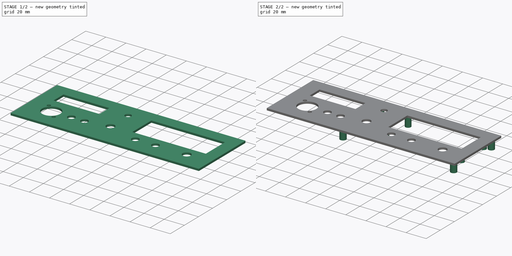
[diagram: build sequence overview — one tinted view per stage of 2, left to right]
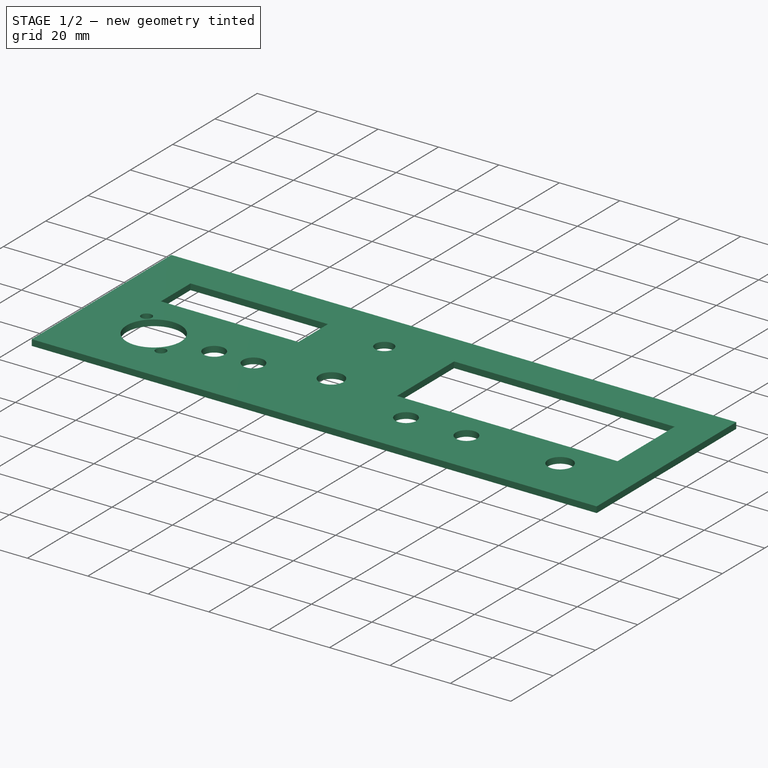
[diagram: stage 1 of 2 — iso view after this stage's code; geometry added in this stage tinted green]
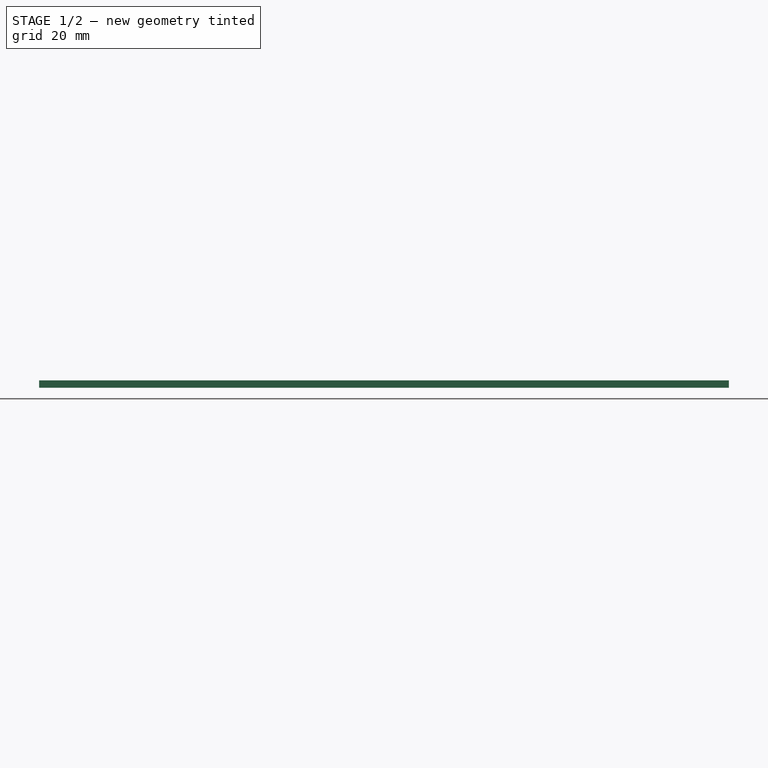
[diagram: stage 1 of 2 — front view after this stage's code; geometry added in this stage tinted green]
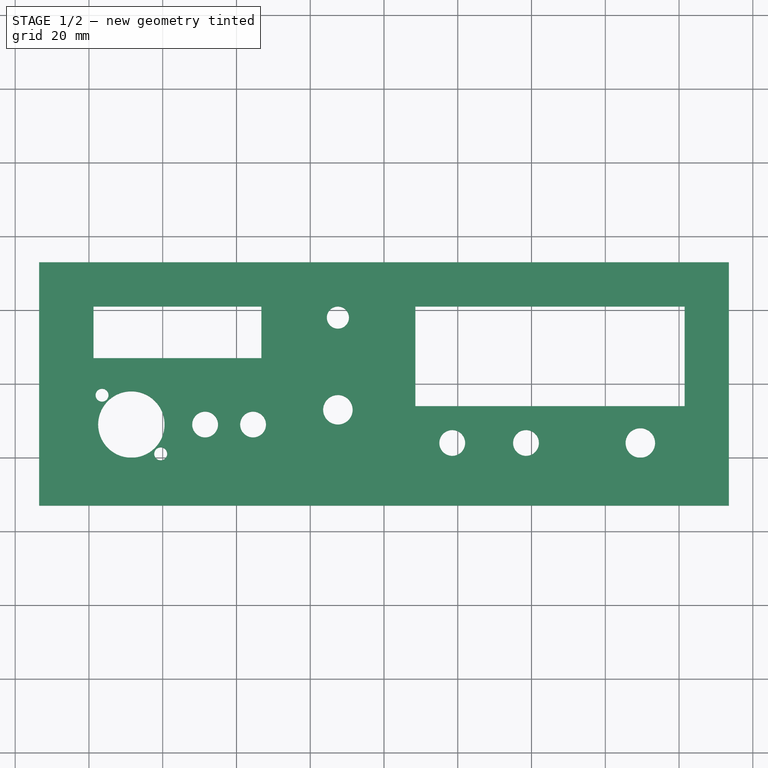
[diagram: stage 1 of 2 — top view after this stage's code; geometry added in this stage tinted green]
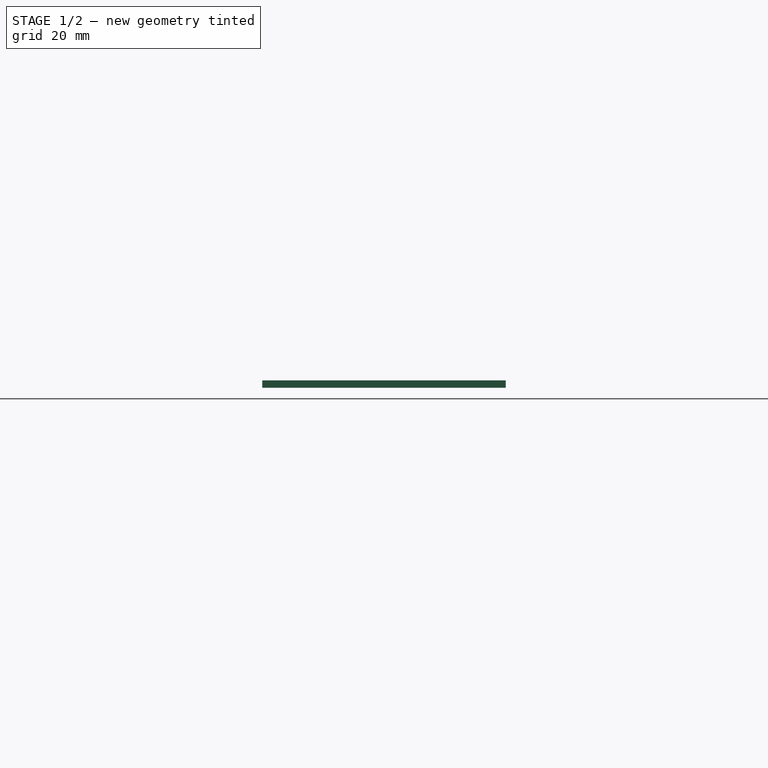
[diagram: stage 1 of 2 — right view after this stage's code; geometry added in this stage tinted green]
FCSTD DOCUMENT  (FreeCAD 0.21R33771 (Git))
Label: facade144V1
License: All rights reserved
LicenseURL: https://en.wikipedia.org/wiki/All_rights_reserved
objects: Sketcher::SketchObject×2, PartDesign::Pad×2, PartDesign::Body×1
note: 7 computed .brp shape members not serialized (recipe doc carries the construction recipe); baked Part::Feature solids carry a one-line shape summary decoded from their .brp

FEATURE [Sketcher::SketchObject] Sketch
  FullyConstrained = false
  MapMode = 5
  Support = -> [XY_Plane]
  sketch-geometry (29):
    g0: LineSegment StartX=8.5 StartY=21 StartZ=0 EndX=81.5 EndY=21 EndZ=0
    g1: LineSegment StartX=81.5 StartY=21 StartZ=0 EndX=81.5 EndY=-6 EndZ=0
    g2: LineSegment StartX=81.5 StartY=-6 StartZ=0 EndX=8.5 EndY=-6 EndZ=0
    g3: LineSegment StartX=8.5 StartY=-6 StartZ=0 EndX=8.5 EndY=21 EndZ=0
    g4: LineSegment StartX=-93.5 StartY=33 StartZ=0 EndX=93.5 EndY=33 EndZ=0
    g5: LineSegment StartX=93.5 StartY=33 StartZ=0 EndX=93.5 EndY=-33 EndZ=0
    g6: LineSegment StartX=93.5 StartY=-33 StartZ=0 EndX=-93.5 EndY=-33 EndZ=0
    g7: LineSegment StartX=-93.5 StartY=-33 StartZ=0 EndX=-93.5 EndY=33 EndZ=0
    g8: LineSegment StartX=-83.5 StartY=23 StartZ=0 EndX=83.5 EndY=23 EndZ=0
    g9: LineSegment StartX=83.5 StartY=23 StartZ=0 EndX=83.5 EndY=-23 EndZ=0
    g10: LineSegment StartX=83.5 StartY=-23 StartZ=0 EndX=-83.5 EndY=-23 EndZ=0
    g11: LineSegment StartX=-83.5 StartY=-23 StartZ=0 EndX=-83.5 EndY=23 EndZ=0
    g12: LineSegment StartX=-78.75 StartY=21 StartZ=0 EndX=-33.25 EndY=21 EndZ=0
    g13: LineSegment StartX=-33.25 StartY=21 StartZ=0 EndX=-33.25 EndY=7 EndZ=0
    g14: LineSegment StartX=-33.25 StartY=7 StartZ=0 EndX=-78.75 EndY=7 EndZ=0
    g15: LineSegment StartX=-78.75 StartY=7 StartZ=0 EndX=-78.75 EndY=21 EndZ=0
    g16: Circle CenterX=69.5 CenterY=-16 CenterZ=0 NormalX=0 NormalY=0 NormalZ=1 AngleXU=0 Radius=4
    g17: Circle CenterX=-12.5 CenterY=-7 CenterZ=0 NormalX=0 NormalY=0 NormalZ=1 AngleXU=0 Radius=4
    g18: Circle CenterX=-12.5 CenterY=-7 CenterZ=0 NormalX=0 NormalY=0 NormalZ=1 AngleXU=0 Radius=15
    g19: Circle CenterX=-12.5 CenterY=18 CenterZ=0 NormalX=0 NormalY=0 NormalZ=1 AngleXU=0 Radius=3
    g20: Circle CenterX=-48.5 CenterY=-11 CenterZ=0 NormalX=0 NormalY=0 NormalZ=1 AngleXU=0 Radius=3.5
    g21: Circle CenterX=-35.5 CenterY=-11 CenterZ=0 NormalX=0 NormalY=0 NormalZ=1 AngleXU=0 Radius=3.5
    g22: Circle CenterX=-68.5 CenterY=-11 CenterZ=0 NormalX=0 NormalY=0 NormalZ=1 AngleXU=0 Radius=9
    g23: Circle CenterX=-76.455 CenterY=-3.04505 CenterZ=0 NormalX=0 NormalY=0 NormalZ=1 AngleXU=0 Radius=1.75
    g24: Circle CenterX=-60.545 CenterY=-18.955 CenterZ=0 NormalX=0 NormalY=0 NormalZ=1 AngleXU=0 Radius=1.75
    g25: Circle CenterX=69.5 CenterY=-16 CenterZ=0 NormalX=0 NormalY=0 NormalZ=1 AngleXU=0 Radius=7.7019
    g26: Circle CenterX=18.5 CenterY=-16 CenterZ=0 NormalX=0 NormalY=0 NormalZ=1 AngleXU=0 Radius=3.5
    g27: Circle CenterX=38.5 CenterY=-16 CenterZ=0 NormalX=0 NormalY=0 NormalZ=1 AngleXU=0 Radius=3.5
    g28: LineSegment StartX=-76.455 StartY=-3.04505 StartZ=0 EndX=-60.545 EndY=-18.955 EndZ=0
  constraints (80):
    c: Coincident(g0,g1)
    c: Coincident(g1,g2)
    c: Coincident(g2,g3)
    c: Coincident(g3,g0)
    c: Horizontal(g2)
    c: Vertical(g1)
    c: Vertical(g3)
    c: Coincident(g4,g5)
    c: Coincident(g5,g6)
    c: Coincident(g6,g7)
    c: Coincident(g7,g4)
    c: Horizontal(g4)
    c: Horizontal(g6)
    c: Vertical(g5)
    c: Vertical(g7)
    c: Coincident(g8,g9)
    c: Coincident(g9,g10)
    c: Coincident(g10,g11)
    c: Coincident(g11,g8)
    c: Horizontal(g10)
    c: Vertical(g9)
    c: Symmetric(g8,g8,g-2)
    c: Symmetric(g8,g10,g-1)
    c: DistanceY(g11,g11) = 46
    c: DistanceX(g8,g8) = 167
    c: DistanceX(g0,g0) = 73
    c: DistanceY(g3,g3) = 27
    c: Coincident(g12,g13)
    c: Coincident(g13,g14)
    c: Coincident(g14,g15)
    c: Coincident(g15,g12)
    c: Horizontal(g12)
    c: Horizontal(g14)
    c: Vertical(g13)
    c: Vertical(g15)
    c: DistanceX(g12,g12) = 45.5
    c: DistanceY(g15,g15) = 14
    c: Horizontal(g0)
    c: Diameter(g17) = 8
    c: Coincident(g18,g17)
    c: Diameter(g18) = 30
    c: Diameter(g19) = 6
    c: Diameter(g16) = 8
    c: Distance(g10,g7) = 10
    c: Distance(g10,g6) = 10
    c: Distance(g8,g4) = 10
    c: Distance(g8,g5) = 10
    c: DistanceY(g-1,g17) = -7
    c: Distance(g12,g11) = 4.75
    c: Diameter(g20) = 7
    c: Equal(g20,g21)
    c: Horizontal(g20,g21)
    c: Coincident(g25,g16)
    c: Distance(g20,g21) = 13
    c: Horizontal(g26,g27)
    c: Distance(g26,g27) = 20
    c: DistanceX(g2,g26) = 10
    c: Diameter(g26) = 7
    c: Diameter(g27) = 7
    c: Diameter(g23) = 3.5
    c: Diameter(g24) = 3.5
    c: Symmetric(g23,g24,g22)
    c: Diameter(g22) = 18
    c: Horizontal(g22,g20)
    c: Distance(g22,g11) = 15
    c: Distance(g22,g10) = 12
    c: Distance(g23,g24) = 22.5
    c: Coincident(g28,g23)
    c: Coincident(g28,g24)
    c: Angle(g10,g28) = 2.35619
    c: Distance(g22,g20) = 20
    c: Horizontal(g27,g16)
    c: Distance(g16,g9) = 14
    c: Distance(g16,g10) = 7
    c: Vertical(g17,g19)
    c: DistanceX(g-2,g0) = 8.5
    c: DistanceY(g-1,g0) = 21
    c: Horizontal(g12,g0)
    c: DistanceX(g-2,g19) = -12.5
    c: Distance(g19,g8) = 5
FEATURE [PartDesign::Pad] Pad  label="face avant"
  Direction = (0,0,1)
  Length = 2
  Length2 = 10
  Profile = -> Sketch
  ReferenceAxis = -> Sketch [N_Axis]
  Type = 0
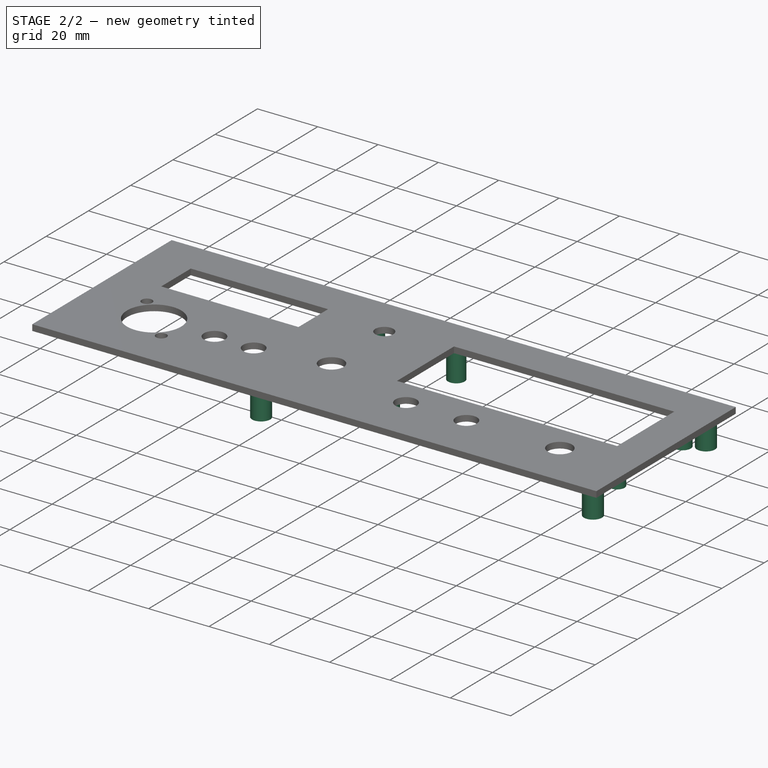
[diagram: stage 2 of 2 — iso view after this stage's code; geometry added in this stage tinted green]
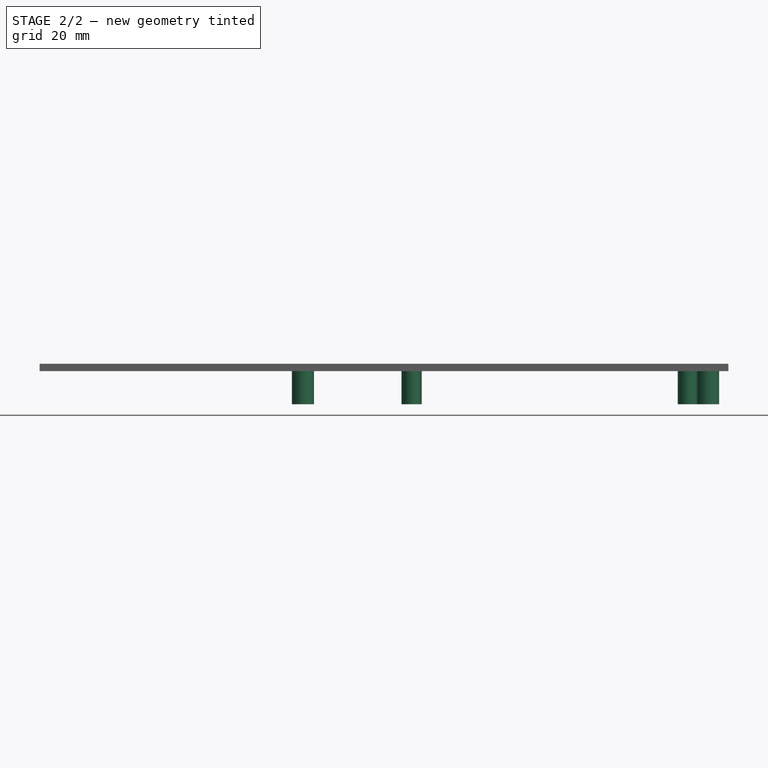
[diagram: stage 2 of 2 — front view after this stage's code; geometry added in this stage tinted green]
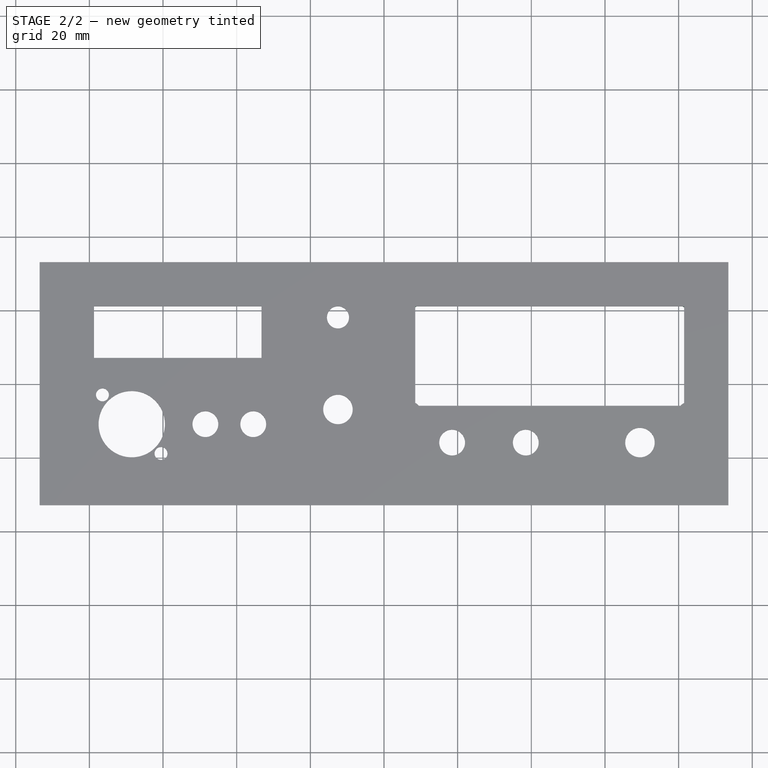
[diagram: stage 2 of 2 — top view after this stage's code; geometry added in this stage tinted green]
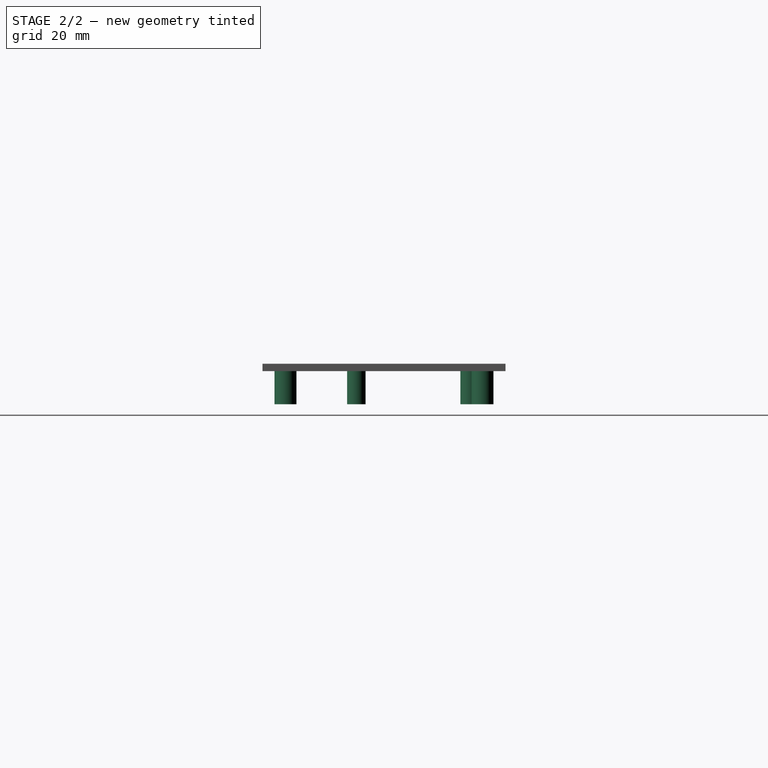
[diagram: stage 2 of 2 — right view after this stage's code; geometry added in this stage tinted green]
FEATURE [Sketcher::SketchObject] Sketch001
  FullyConstrained = false
  MapMode = 5
  Support = -> [XY_Plane]
  sketch-geometry (16):
    g0: Circle CenterX=82.5 CenterY=23.5 CenterZ=0 NormalX=0 NormalY=0 NormalZ=1 AngleXU=0 Radius=1.25
    g1: Circle CenterX=82.5 CenterY=23.5 CenterZ=0 NormalX=0 NormalY=0 NormalZ=1 AngleXU=0 Radius=2.75
    g2: Circle CenterX=7.5 CenterY=23.5 CenterZ=0 NormalX=0 NormalY=0 NormalZ=1 AngleXU=0 Radius=2.75
    g3: Circle CenterX=7.5 CenterY=23.5 CenterZ=0 NormalX=0 NormalY=0 NormalZ=1 AngleXU=0 Radius=1.25
    g4: Circle CenterX=82.5 CenterY=-7.5 CenterZ=0 NormalX=0 NormalY=0 NormalZ=1 AngleXU=0 Radius=2.5
    g5: Circle CenterX=82.5 CenterY=-7.5 CenterZ=0 NormalX=0 NormalY=0 NormalZ=1 AngleXU=0 Radius=1.25
    g6: Circle CenterX=7.5 CenterY=-7.5 CenterZ=0 NormalX=0 NormalY=0 NormalZ=1 AngleXU=0 Radius=2.5
    g7: Circle CenterX=7.5 CenterY=-7.5 CenterZ=0 NormalX=0 NormalY=0 NormalZ=1 AngleXU=0 Radius=1.25
    g8: Circle CenterX=-22 CenterY=26.75 CenterZ=0 NormalX=0 NormalY=0 NormalZ=1 AngleXU=0 Radius=1.5
    g9: Circle CenterX=88 CenterY=26.75 CenterZ=0 NormalX=0 NormalY=0 NormalZ=1 AngleXU=0 Radius=1.5
    g10: Circle CenterX=88 CenterY=-26.75 CenterZ=0 NormalX=0 NormalY=0 NormalZ=1 AngleXU=0 Radius=1.5
    g11: Circle CenterX=-22 CenterY=-26.75 CenterZ=0 NormalX=0 NormalY=0 NormalZ=1 AngleXU=0 Radius=1.5
    g12: Circle CenterX=-22 CenterY=26.75 CenterZ=0 NormalX=0 NormalY=0 NormalZ=1 AngleXU=0 Radius=3
    g13: Circle CenterX=-22 CenterY=-26.75 CenterZ=0 NormalX=0 NormalY=0 NormalZ=1 AngleXU=0 Radius=3
    g14: Circle CenterX=88 CenterY=-26.75 CenterZ=0 NormalX=0 NormalY=0 NormalZ=1 AngleXU=0 Radius=3
    g15: Circle CenterX=88 CenterY=26.75 CenterZ=0 NormalX=0 NormalY=0 NormalZ=1 AngleXU=0 Radius=3
  constraints (38):
    c: Coincident(g1,g0)
    c: Diameter(g0) = 2.5
    c: Diameter(g1) = 5.5
    c: Coincident(g3,g2)
    c: Coincident(g5,g4)
    c: Coincident(g7,g6)
    c: Equal(g0,g3)
    c: Equal(g3,g5)
    c: Equal(g1,g2)
    c: Horizontal(g0,g2)
    c: Horizontal(g6,g4)
    c: Vertical(g0,g4)
    c: Vertical(g2,g6)
    c: Distance(g0,g2) = 75
    c: Distance(g0,g4) = 31
    c: DistanceX(g-2,g2) = 7.5
    c: DistanceY(g-1,g2) = 23.5
    c: Equal(g7,g5)
    c: Diameter(g6) = 5
    c: Diameter(g4) = 5
    c: Diameter(g8) = 3
    c: Equal(g8,g11)
    c: Equal(g11,g9)
    c: Equal(g9,g10)
    c: Coincident(g12,g8)
    c: Coincident(g13,g11)
    c: Coincident(g14,g10)
    c: Coincident(g15,g9)
    c: Horizontal(g10,g11)
    c: Vertical(g9,g10)
    c: Distance(g8,g9) = 110
    c: Distance(g8,g11) = 53.5
    c: Symmetric(g8,g11,g-1)
    c: Diameter(g12) = 6
    c: Equal(g12,g15)
    c: Equal(g15,g14)
    c: Equal(g14,g13)
    c: DistanceX(g-2,g8) = -22
FEATURE [PartDesign::Pad] Pad001  label="Colonne afficheur"
  BaseFeature = -> Pad
  Direction = (0,0,1)
  Length = 9
  Length2 = 10
  Profile = -> Sketch001
  ReferenceAxis = -> Sketch001 [N_Axis]
  Reversed = true
  Type = 0
FEATURE [PartDesign::Body] Body  label="Corps"
  Group = -> [Sketch,Pad,Sketch001,Pad001]
  Origin = -> Origin
  Tip = -> Pad001
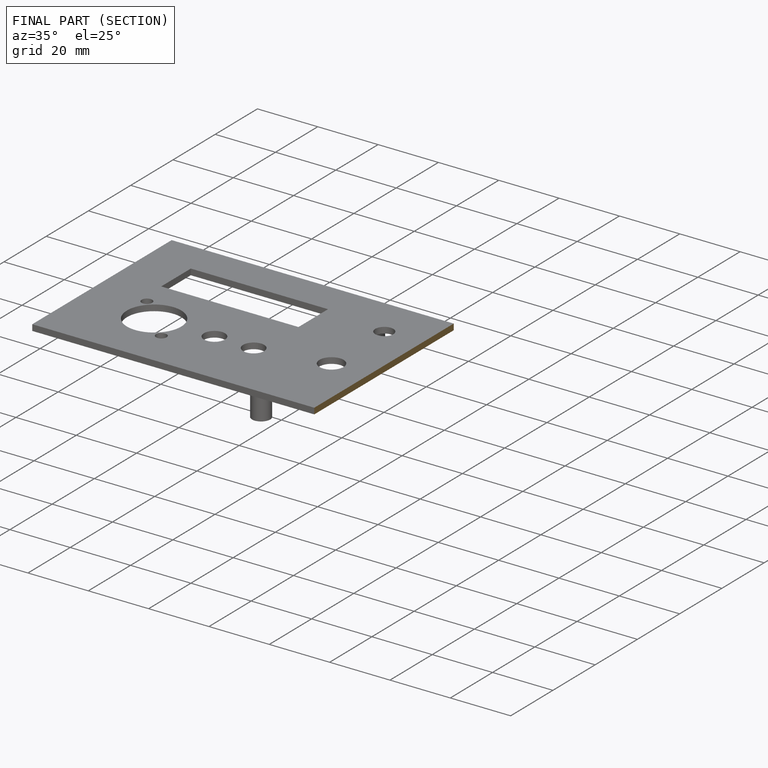
[diagram: finished part — half-section view (interior)]
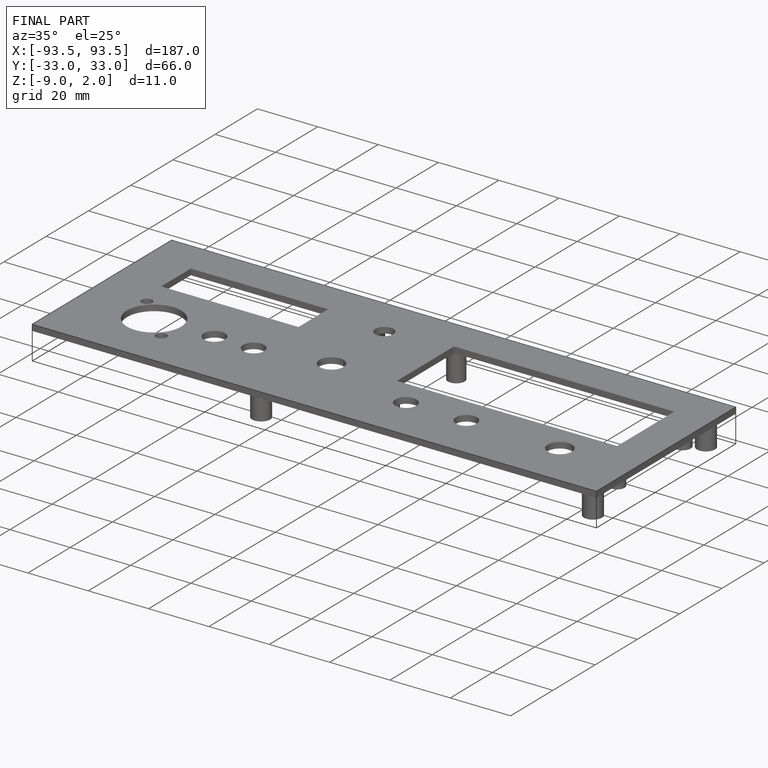
[diagram: finished part — iso view with bounding-box wireframe]
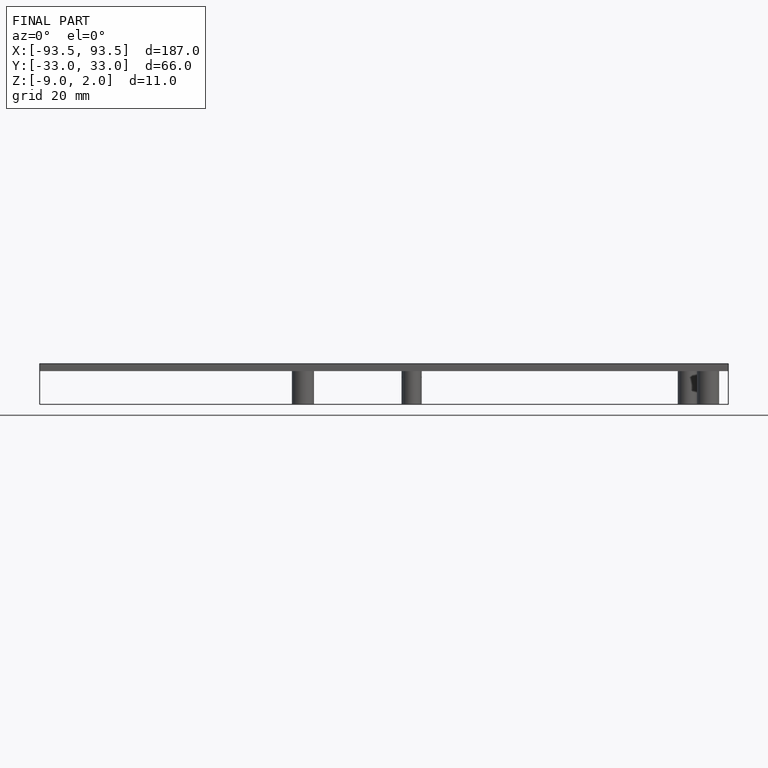
[diagram: finished part — front view with bounding-box wireframe]
